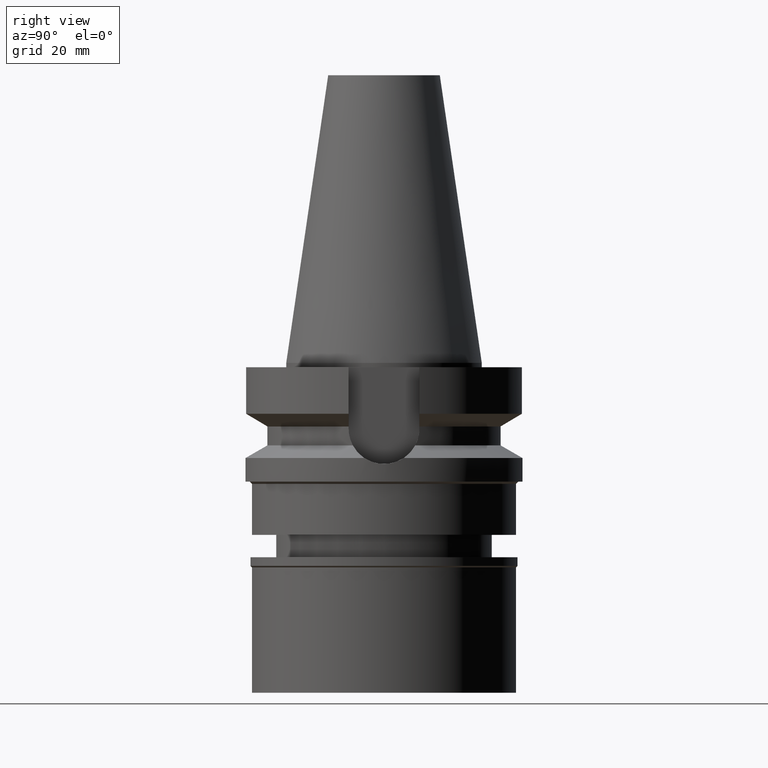
[diagram: clean part render]
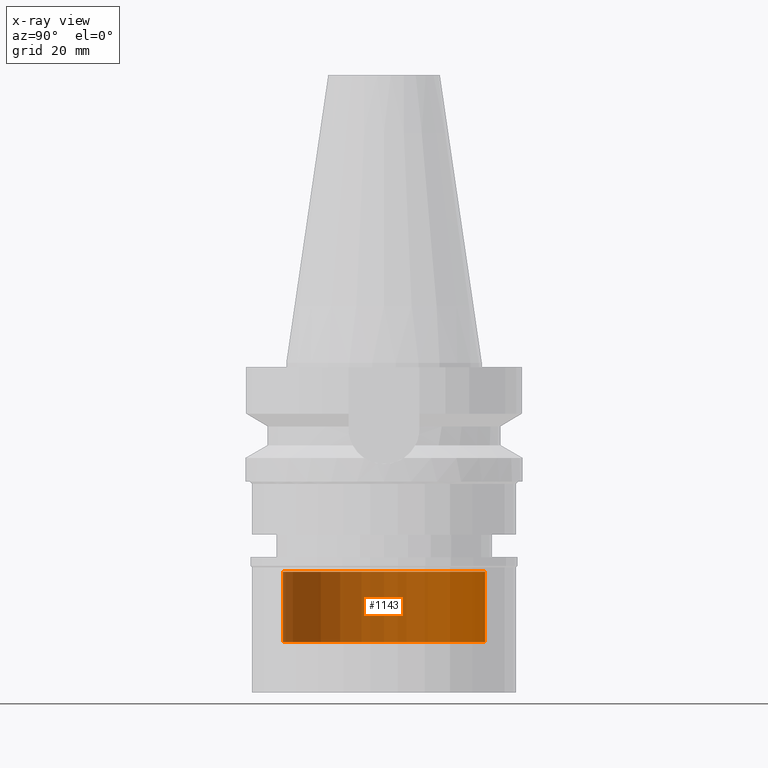
[diagram: x-ray — body ghosted, one internal face saturated and labeled with its STEP entity id]
A machine part, right view, then the same camera in x-ray: the body is ghosted and one INTERNAL B-rep face — a face not visible from any outside direction — is saturated and labeled: STEP entity #1143.
In plain terms, the highlighted cylindrical surface (partial cylindrical patch) has radius 23 mm, axis along (0, 0, -1).
Its self-contained STEP definition (entity closure, byte-faithful):
#69 = CARTESIAN_POINT ( 'NONE',  ( 0.0000000000000000000, 0.0000000000000000000, 0.0000000000000000000 ) ) ;
#123 = EDGE_CURVE ( 'NONE', #2194, #239, #2578, .T. ) ;
#239 = VERTEX_POINT ( 'NONE', #1932 ) ;
#333 = FACE_OUTER_BOUND ( 'NONE', #2116, .T. ) ;
#422 = EDGE_CURVE ( 'NONE', #1136, #239, #782, .T. ) ;
#519 = DIRECTION ( 'NONE',  ( 0.0000000000000000000, 0.0000000000000000000, 1.000000000000000000 ) ) ;
#546 = VECTOR ( 'NONE', #1931, 1000.000000000000000 ) ;
#636 = DIRECTION ( 'NONE',  ( 0.0000000000000000000, 0.0000000000000000000, -1.000000000000000000 ) ) ;
#678 = VERTEX_POINT ( 'NONE', #1132 ) ;
#782 = LINE ( 'NONE', #2408, #2921 ) ;
#810 = DIRECTION ( 'NONE',  ( 0.0000000000000000000, 0.0000000000000000000, -1.000000000000000000 ) ) ;
#828 = DIRECTION ( 'NONE',  ( 0.0000000000000000000, -1.000000000000000000, 0.0000000000000000000 ) ) ;
#998 = DIRECTION ( 'NONE',  ( 0.0000000000000000000, 0.0000000000000000000, -1.000000000000000000 ) ) ;
#1065 = ORIENTED_EDGE ( 'NONE', *, *, #2958, .T. ) ;
#1132 = CARTESIAN_POINT ( 'NONE',  ( 0.0000000000000000000, 23.00000000000000000, -47.50000000000000000 ) ) ;
#1136 = VERTEX_POINT ( 'NONE', #2379 ) ;
#1143 = ADVANCED_FACE ( 'NONE', ( #333 ), #1200, .T. ) ;
#1146 = EDGE_CURVE ( 'NONE', #678, #2194, #2395, .T. ) ;
#1200 = CYLINDRICAL_SURFACE ( 'NONE', #1305, 23.00000000000000000 ) ;
#1305 = AXIS2_PLACEMENT_3D ( 'NONE', #69, #998, #2807 ) ;
#1316 = CARTESIAN_POINT ( 'NONE',  ( 0.0000000000000000000, 0.0000000000000000000, -47.50000000000000000 ) ) ;
#1405 = ORIENTED_EDGE ( 'NONE', *, *, #1146, .T. ) ;
#1425 = DIRECTION ( 'NONE',  ( 0.0000000000000000000, 1.000000000000000000, 0.0000000000000000000 ) ) ;
#1734 = CARTESIAN_POINT ( 'NONE',  ( 0.0000000000000000000, 23.00000000000000000, -63.50000000000000000 ) ) ;
#1886 = CARTESIAN_POINT ( 'NONE',  ( 0.0000000000000000000, 23.00000000000000000, -47.50000000000000000 ) ) ;
#1931 = DIRECTION ( 'NONE',  ( 0.0000000000000000000, 0.0000000000000000000, -1.000000000000000000 ) ) ;
#1932 = CARTESIAN_POINT ( 'NONE',  ( 0.0000000000000000000, -23.00000000000000000, -63.50000000000000000 ) ) ;
#2025 = ORIENTED_EDGE ( 'NONE', *, *, #123, .T. ) ;
#2116 = EDGE_LOOP ( 'NONE', ( #2025, #2453, #1065, #1405 ) ) ;
#2194 = VERTEX_POINT ( 'NONE', #1734 ) ;
#2281 = CARTESIAN_POINT ( 'NONE',  ( 0.0000000000000000000, 0.0000000000000000000, -63.50000000000000000 ) ) ;
#2379 = CARTESIAN_POINT ( 'NONE',  ( 0.0000000000000000000, -23.00000000000000000, -47.50000000000000000 ) ) ;
#2395 = LINE ( 'NONE', #1886, #546 ) ;
#2408 = CARTESIAN_POINT ( 'NONE',  ( 0.0000000000000000000, -23.00000000000000000, -47.50000000000000000 ) ) ;
#2453 = ORIENTED_EDGE ( 'NONE', *, *, #422, .F. ) ;
#2525 = CIRCLE ( 'NONE', #2917, 23.00000000000000000 ) ;
#2578 = CIRCLE ( 'NONE', #2733, 23.00000000000000000 ) ;
#2733 = AXIS2_PLACEMENT_3D ( 'NONE', #2281, #519, #1425 ) ;
#2807 = DIRECTION ( 'NONE',  ( 0.0000000000000000000, -1.000000000000000000, 0.0000000000000000000 ) ) ;
#2917 = AXIS2_PLACEMENT_3D ( 'NONE', #1316, #636, #828 ) ;
#2921 = VECTOR ( 'NONE', #810, 1000.000000000000000 ) ;
#2958 = EDGE_CURVE ( 'NONE', #1136, #678, #2525, .T. ) ;